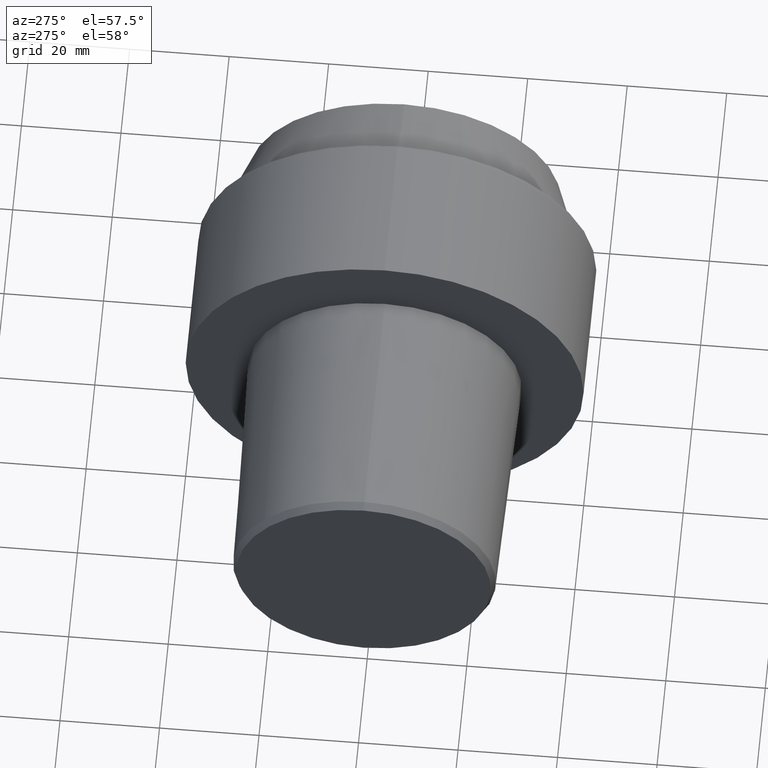
[diagram: clean part render]
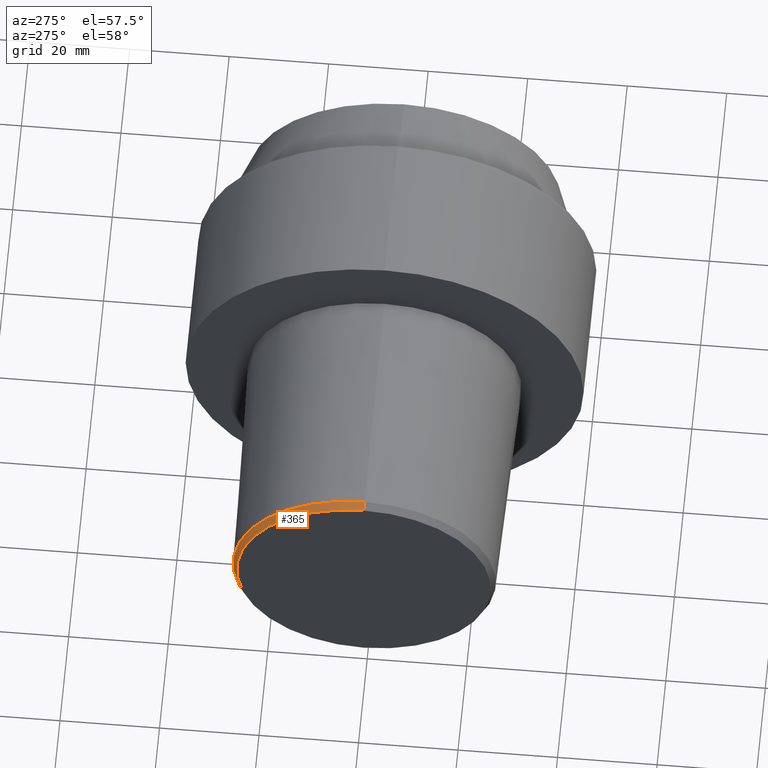
[diagram: same view with one face highlighted and labeled with its STEP entity id]
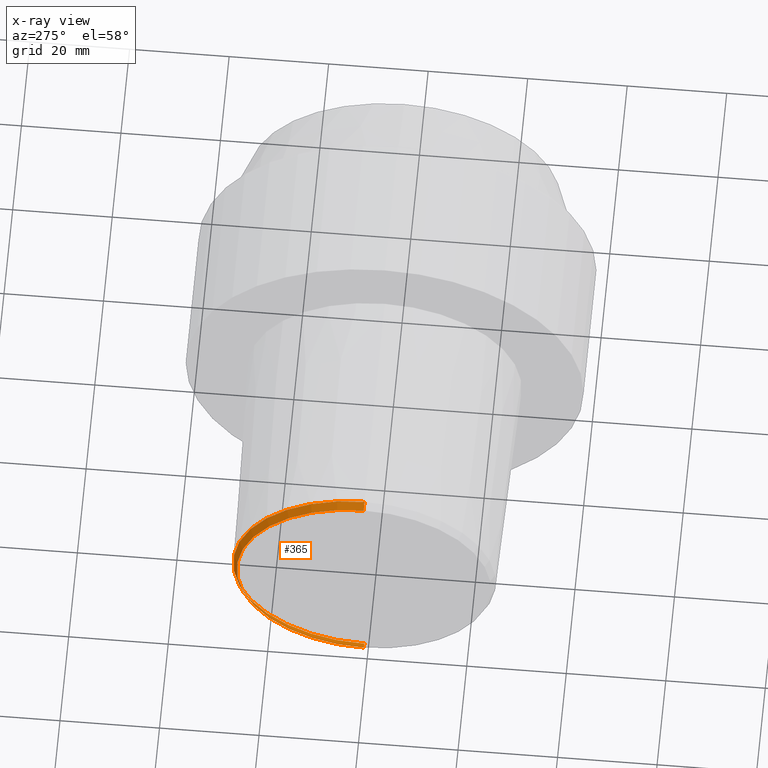
[diagram: x-ray of the same camera — body ghosted, the highlighted face saturated]
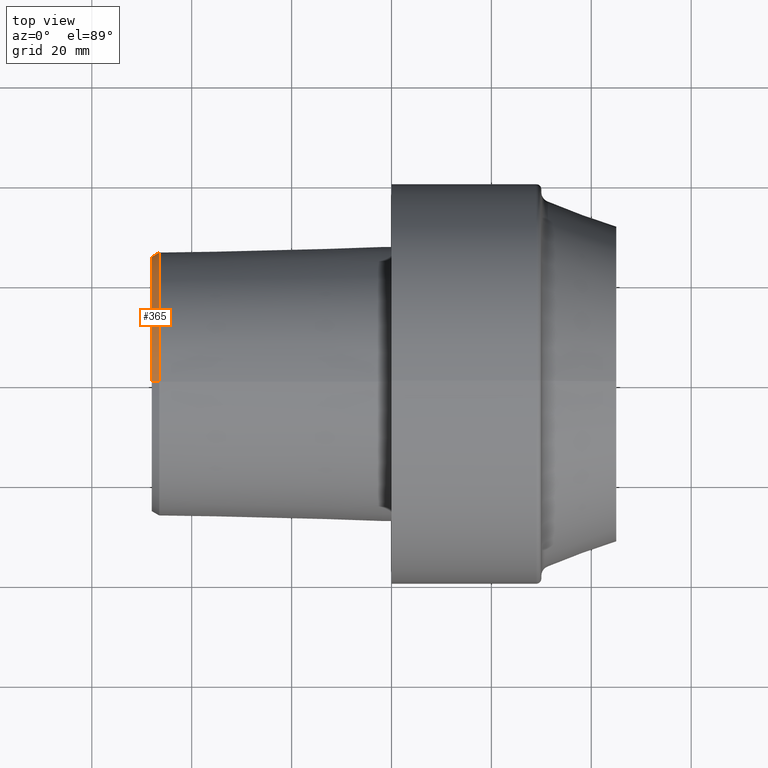
[diagram: same view with one face highlighted and labeled with its STEP entity id]
A machine part, auxiliary view. The second image highlights one B-rep face of the part: STEP entity #365.
The next image is the same camera in x-ray: the body ghosted, the highlighted face saturated — about 0% of this face is hidden behind the body in this view.
A second angle (top view) of the same face is appended — the face is thin or edge-on in the first view.
In plain terms, the highlighted conical surface has half-angle 30 deg.
Its self-contained STEP definition (entity closure, byte-faithful):
#2 = VERTEX_POINT ( 'NONE', #322 ) ;
#8 = VERTEX_POINT ( 'NONE', #199 ) ;
#11 = EDGE_CURVE ( 'NONE', #382, #297, #85, .T. ) ;
#12 = CONICAL_SURFACE ( 'NONE', #242, 26.41260027772084129, 0.5235987755982992597 ) ;
#25 = EDGE_CURVE ( 'NONE', #297, #8, #231, .T. ) ;
#69 = CARTESIAN_POINT ( 'NONE',  ( -46.49999994987858543, 0.000000000000000000, 0.000000000000000000 ) ) ;
#77 = CARTESIAN_POINT ( 'NONE',  ( -47.99999995507708661, 0.000000000000000000, 0.000000000000000000 ) ) ;
#85 = LINE ( 'NONE', #232, #215 ) ;
#92 = EDGE_CURVE ( 'NONE', #382, #2, #257, .T. ) ;
#124 = AXIS2_PLACEMENT_3D ( 'NONE', #77, #406, #150 ) ;
#131 = AXIS2_PLACEMENT_3D ( 'NONE', #458, #161, #489 ) ;
#149 = DIRECTION ( 'NONE',  ( 0.000000000000000000, 0.000000000000000000, -1.000000000000000000 ) ) ;
#150 = DIRECTION ( 'NONE',  ( 0.000000000000000000, 0.000000000000000000, 1.000000000000000000 ) ) ;
#161 = DIRECTION ( 'NONE',  ( -1.000000000000000000, 0.000000000000000000, 0.000000000000000000 ) ) ;
#181 = ORIENTED_EDGE ( 'NONE', *, *, #11, .T. ) ;
#188 = EDGE_LOOP ( 'NONE', ( #218, #181, #512, #519 ) ) ;
#199 = CARTESIAN_POINT ( 'NONE',  ( -46.49999994987858543, 0.000000000000000000, -26.41260027772084129 ) ) ;
#215 = VECTOR ( 'NONE', #268, 1000.000000000000000 ) ;
#218 = ORIENTED_EDGE ( 'NONE', *, *, #92, .F. ) ;
#227 = LINE ( 'NONE', #411, #437 ) ;
#231 = CIRCLE ( 'NONE', #131, 26.41260027772084129 ) ;
#232 = CARTESIAN_POINT ( 'NONE',  ( -46.49999994987858543, 3.234610638726928974E-15, 26.41260027772084129 ) ) ;
#242 = AXIS2_PLACEMENT_3D ( 'NONE', #69, #324, #149 ) ;
#257 = CIRCLE ( 'NONE', #124, 25.54657487093501445 ) ;
#267 = EDGE_CURVE ( 'NONE', #2, #8, #227, .T. ) ;
#268 = DIRECTION ( 'NONE',  ( 0.8660254037844387076, 6.123233995736768501E-17, 0.4999999999999998890 ) ) ;
#279 = CARTESIAN_POINT ( 'NONE',  ( -46.49999994987858543, 3.302817819135798828E-15, 26.41260027772084129 ) ) ;
#297 = VERTEX_POINT ( 'NONE', #279 ) ;
#320 = CARTESIAN_POINT ( 'NONE',  ( -47.99999995507708661, 3.181581876606904120E-15, 25.54657487093501445 ) ) ;
#322 = CARTESIAN_POINT ( 'NONE',  ( -47.99999995507708661, 0.000000000000000000, -25.54657487093501445 ) ) ;
#324 = DIRECTION ( 'NONE',  ( 1.000000000000000000, 0.000000000000000000, 0.000000000000000000 ) ) ;
#365 = ADVANCED_FACE ( 'NONE', ( #526 ), #12, .T. ) ;
#382 = VERTEX_POINT ( 'NONE', #320 ) ;
#406 = DIRECTION ( 'NONE',  ( -1.000000000000000000, 0.000000000000000000, 0.000000000000000000 ) ) ;
#411 = CARTESIAN_POINT ( 'NONE',  ( -46.49999994987858543, 0.000000000000000000, -26.41260027772084129 ) ) ;
#437 = VECTOR ( 'NONE', #457, 1000.000000000000000 ) ;
#457 = DIRECTION ( 'NONE',  ( 0.8660254037844387076, 0.000000000000000000, -0.4999999999999998890 ) ) ;
#458 = CARTESIAN_POINT ( 'NONE',  ( -46.49999994987858543, 0.000000000000000000, 0.000000000000000000 ) ) ;
#489 = DIRECTION ( 'NONE',  ( 0.000000000000000000, 0.000000000000000000, 1.000000000000000000 ) ) ;
#512 = ORIENTED_EDGE ( 'NONE', *, *, #25, .T. ) ;
#519 = ORIENTED_EDGE ( 'NONE', *, *, #267, .F. ) ;
#526 = FACE_OUTER_BOUND ( 'NONE', #188, .T. ) ;